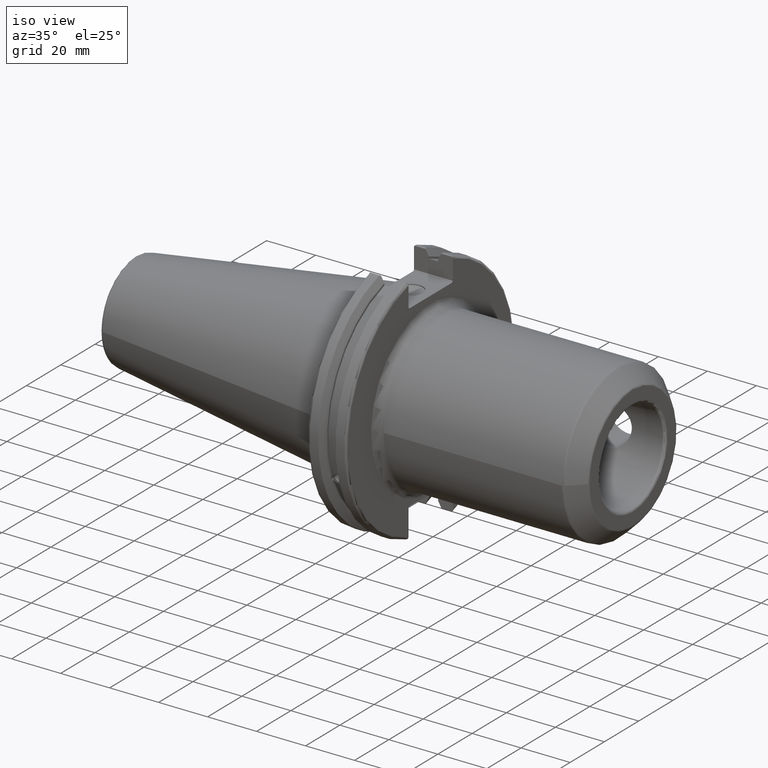
[diagram: clean part render]
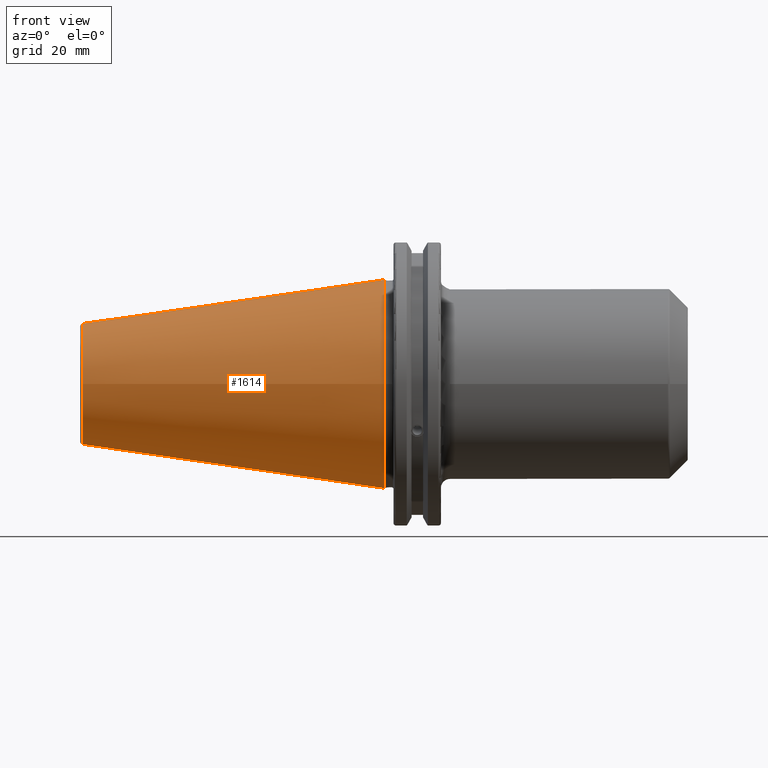
[diagram: tour spotlight — one face highlighted and labeled with its STEP entity id]
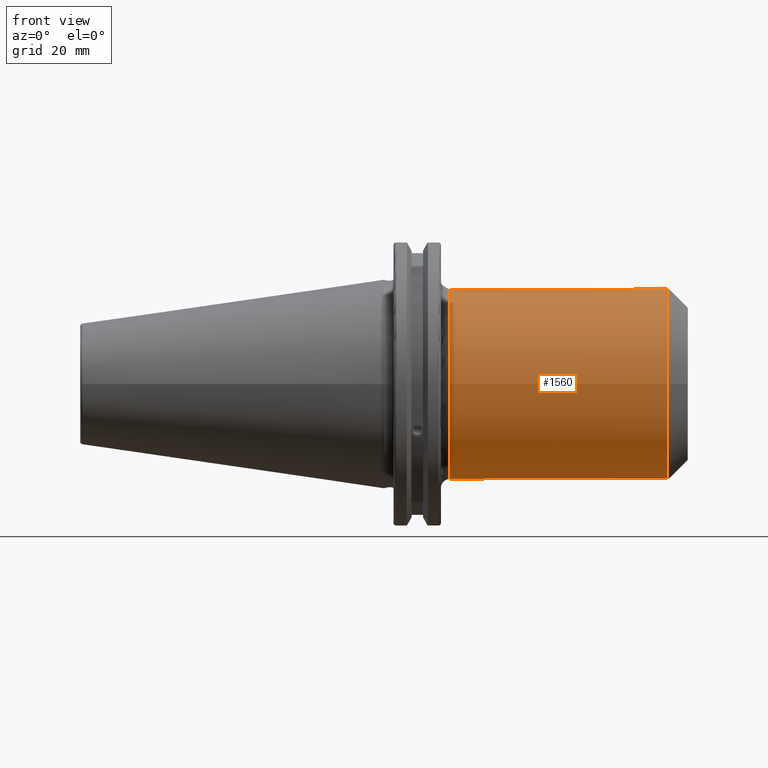
[diagram: tour spotlight — one face highlighted and labeled with its STEP entity id]
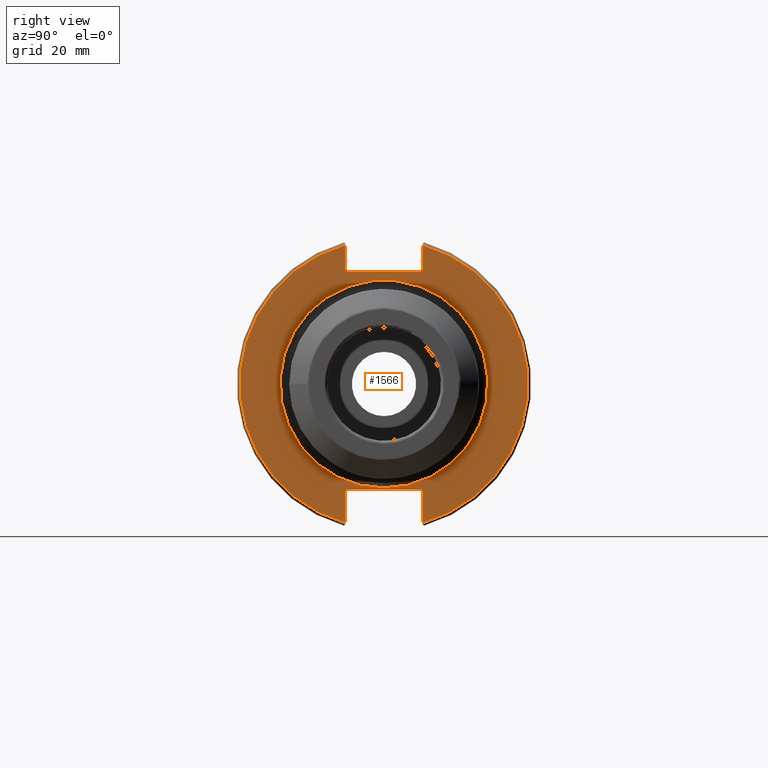
[diagram: tour spotlight — one face highlighted and labeled with its STEP entity id]
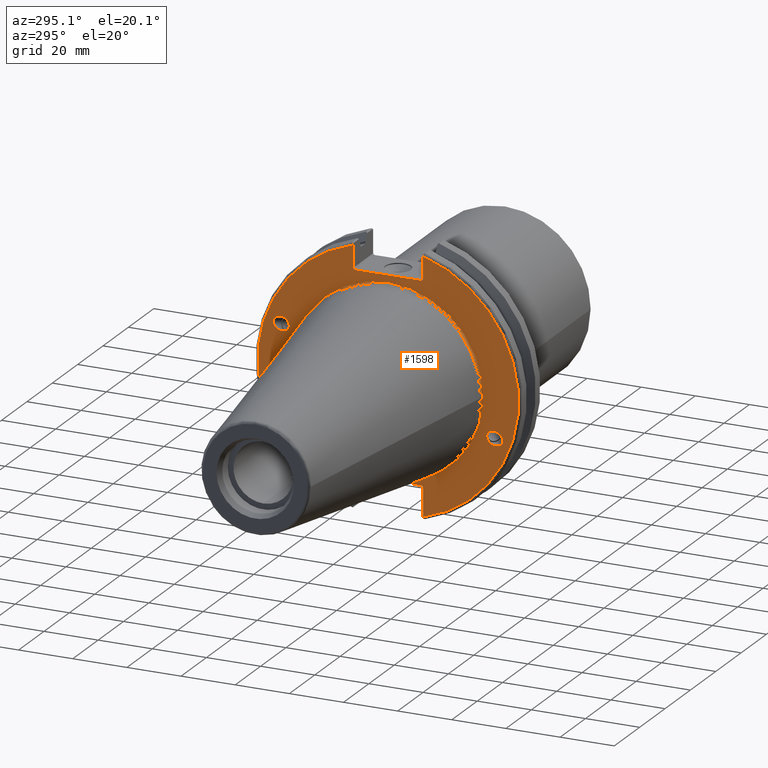
[diagram: tour spotlight — one face highlighted and labeled with its STEP entity id]
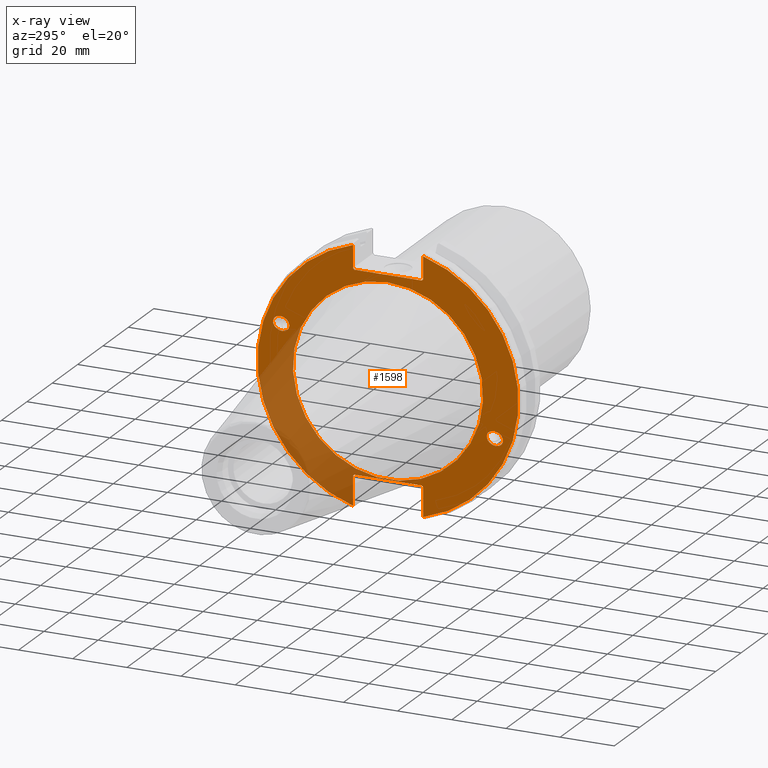
[diagram: x-ray of the same camera — body ghosted, this tour face saturated]
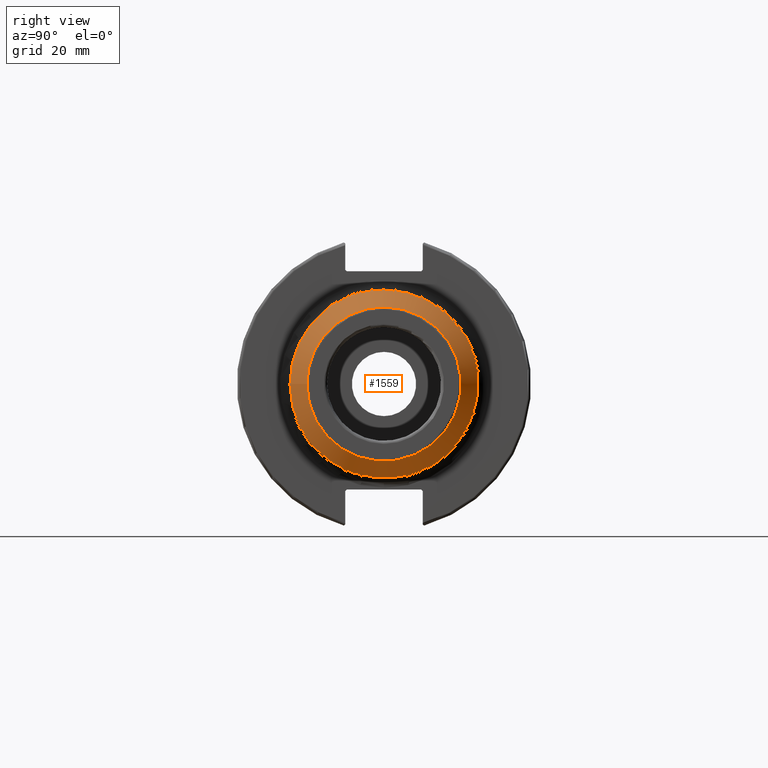
[diagram: tour spotlight — one face highlighted and labeled with its STEP entity id]
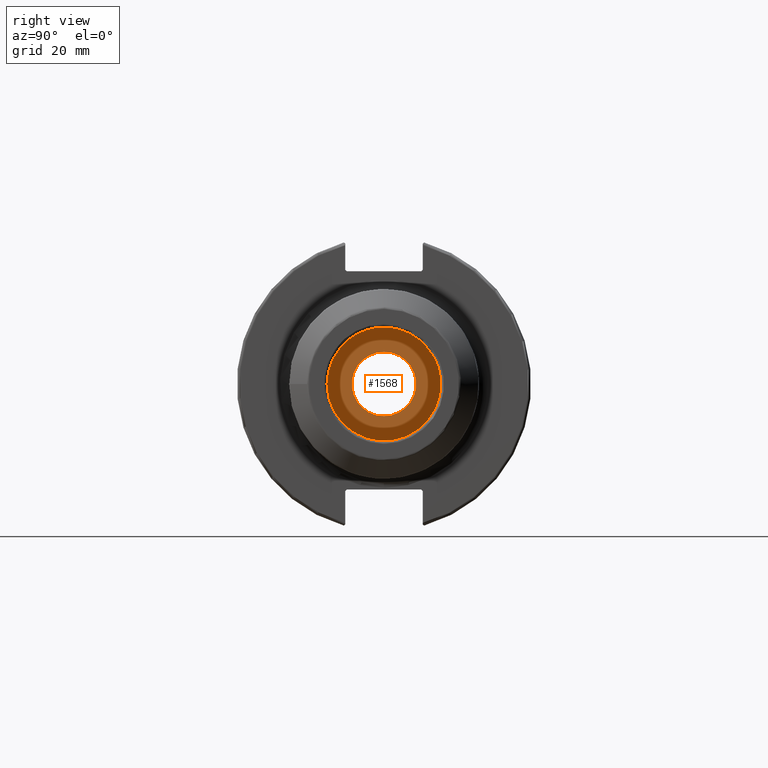
[diagram: tour spotlight — one face highlighted and labeled with its STEP entity id]
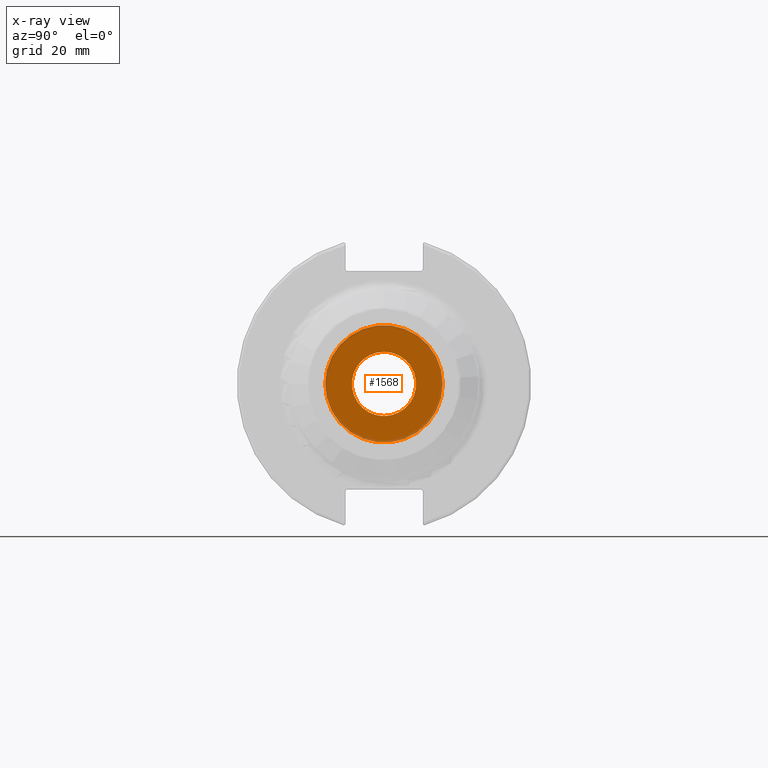
[diagram: x-ray of the same camera — body ghosted, this tour face saturated]
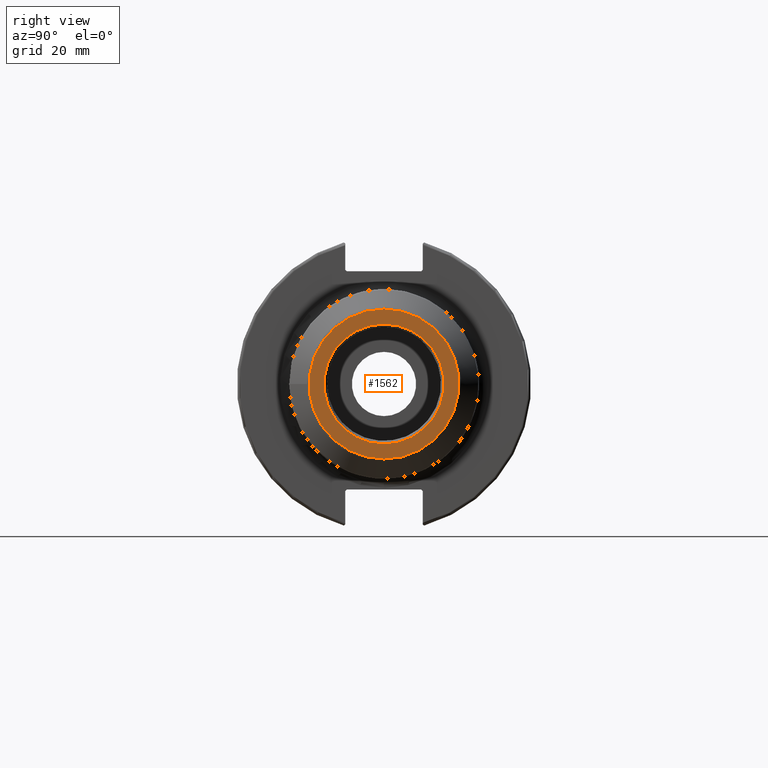
[diagram: tour spotlight — one face highlighted and labeled with its STEP entity id]
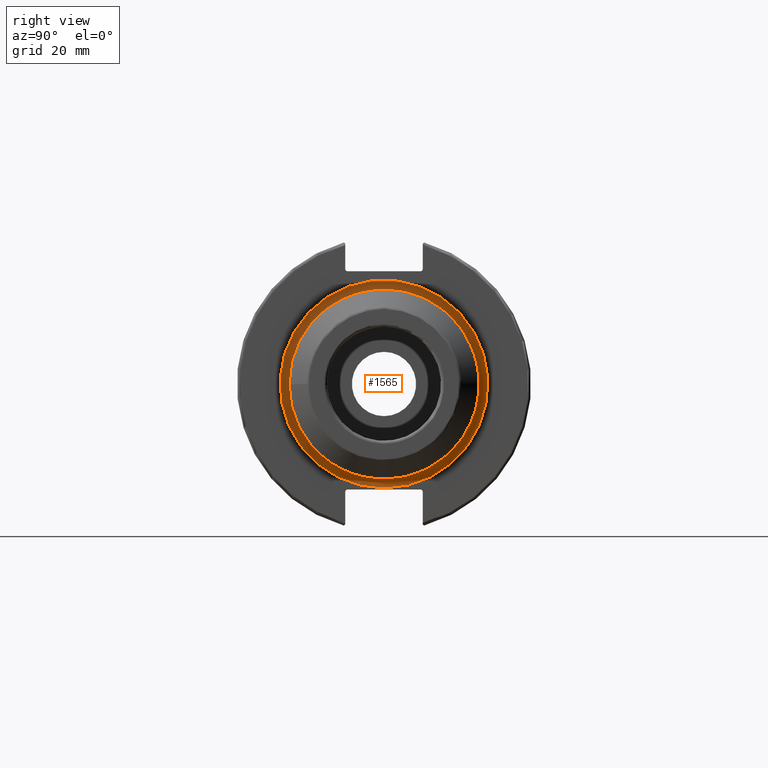
[diagram: tour spotlight — one face highlighted and labeled with its STEP entity id]
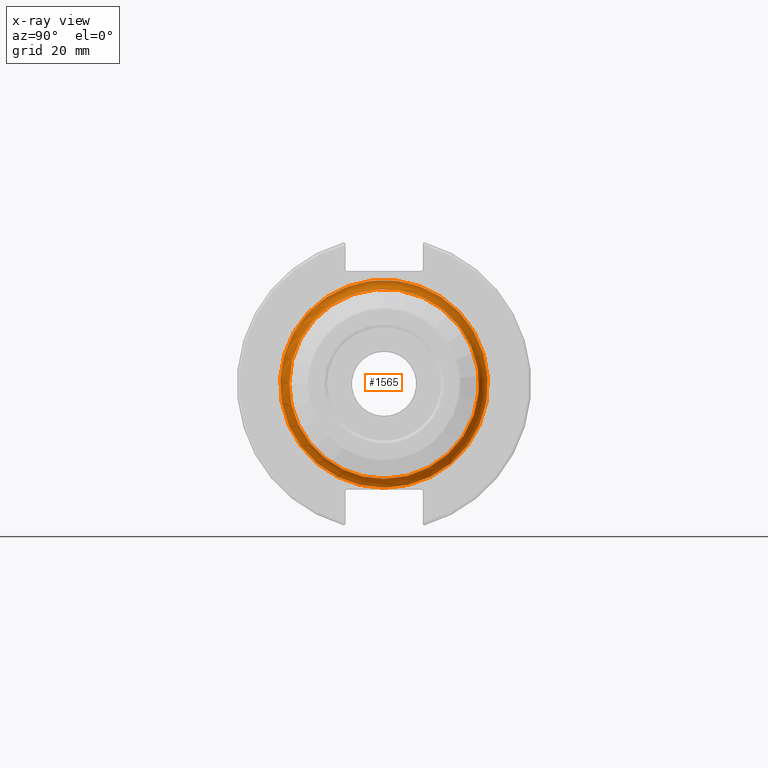
[diagram: x-ray of the same camera — body ghosted, this tour face saturated]
A machine part: a face-by-face anatomy tour. The part has 91 B-rep faces; the first image is the clean iso view, then the 8 largest visible faces are spotlighted one at a time (largest first), each with its STEP entity span.

Face 1 — front view, entity #1614. In plain terms, the highlighted conical surface has half-angle 8.297 deg.
Definition (entity closure, byte-faithful):
#51=CONICAL_SURFACE('',#1799,27.5166666666666,0.14481249823894);
#184=FACE_OUTER_BOUND('',#299,.T.);
#299=EDGE_LOOP('',(#1393,#1394,#1395,#1396,#1397));
#453=LINE('',#3316,#547);
#547=VECTOR('',#2189,27.5166666666666);
#628=CIRCLE('',#1793,20.233121911427);
#629=CIRCLE('',#1794,20.233121911427);
#633=CIRCLE('',#1800,34.925);
#795=VERTEX_POINT('',#3303);
#796=VERTEX_POINT('',#3304);
#799=VERTEX_POINT('',#3314);
#1010=EDGE_CURVE('',#795,#796,#628,.T.);
#1011=EDGE_CURVE('',#796,#795,#629,.T.);
#1015=EDGE_CURVE('',#799,#799,#633,.T.);
#1016=EDGE_CURVE('',#799,#796,#453,.T.);
#1393=ORIENTED_EDGE('',*,*,#1015,.F.);
#1394=ORIENTED_EDGE('',*,*,#1016,.T.);
#1395=ORIENTED_EDGE('',*,*,#1010,.F.);
#1396=ORIENTED_EDGE('',*,*,#1011,.F.);
#1397=ORIENTED_EDGE('',*,*,#1016,.F.);
#1614=ADVANCED_FACE('',(#184),#51,.T.);
#1793=AXIS2_PLACEMENT_3D('',#3305,#2173,#2174);
#1794=AXIS2_PLACEMENT_3D('',#3306,#2175,#2176);
#1799=AXIS2_PLACEMENT_3D('',#3313,#2185,#2186);
#1800=AXIS2_PLACEMENT_3D('',#3315,#2187,#2188);
#2173=DIRECTION('center_axis',(-1.,0.,0.));
#2174=DIRECTION('ref_axis',(0.,-1.,3.06161699786838E-17));
#2175=DIRECTION('center_axis',(-1.,0.,0.));
#2176=DIRECTION('ref_axis',(0.,-1.,3.06161699786838E-17));
#2185=DIRECTION('center_axis',(1.,0.,0.));
#2186=DIRECTION('ref_axis',(0.,1.,0.));
#2187=DIRECTION('center_axis',(1.,0.,0.));
#2188=DIRECTION('ref_axis',(0.,0.,-1.));
#2189=DIRECTION('',(-0.989532981063281,0.144306893071729,1.76724974695192E-17));
#3303=CARTESIAN_POINT('',(-100.744306893072,-2.47784279855872E-15,20.233121911427));
#3304=CARTESIAN_POINT('',(-100.744306893072,-20.233121911427,-2.47784279855872E-15));
#3305=CARTESIAN_POINT('Origin',(-100.744306893072,0.,-3.09730349819841E-15));
#3306=CARTESIAN_POINT('Origin',(-100.744306893072,0.,-3.09730349819841E-15));
#3313=CARTESIAN_POINT('Origin',(-50.8,0.,0.));
#3314=CARTESIAN_POINT('',(-8.88178419700125E-15,-34.925,-4.27707894602213E-15));
#3315=CARTESIAN_POINT('Origin',(0.,0.,0.));
#3316=CARTESIAN_POINT('',(-50.8,-27.5166666666666,-3.3698197756538E-15));

Face 2 — front view, entity #1560. In plain terms, the highlighted cylindrical surface (bore or boss wall) has radius 31.75 mm, axis along (1, 0, 0).
Definition (entity closure, byte-faithful):
#59=FACE_BOUND('',#224,.T.);
#60=FACE_BOUND('',#225,.T.);
#130=FACE_OUTER_BOUND('',#223,.T.);
#223=EDGE_LOOP('',(#1082,#1083,#1084,#1085,#1086,#1087));
#224=EDGE_LOOP('',(#1088,#1089));
#225=EDGE_LOOP('',(#1090,#1091));
#332=B_SPLINE_CURVE_WITH_KNOTS('',3,(#2334,#2335,#2336,#2337,#2338,#2339,
#2340,#2341,#2342,#2343),.UNSPECIFIED.,.F.,.F.,(4,2,2,2,4),(0.,0.374443492453987,
0.748886984907974,1.13657310866181,1.52425923241565),.UNSPECIFIED.);
#333=B_SPLINE_CURVE_WITH_KNOTS('',3,(#2344,#2345,#2346,#2347,#2348,#2349,
#2350,#2351,#2352,#2353,#2354,#2355,#2356,#2357,#2358,#2359,#2360,#2361,
#2362,#2363,#2364,#2365,#2366,#2367,#2368,#2369),.UNSPECIFIED.,.F.,.F.,
(4,2,2,2,2,2,2,2,2,2,2,2,4),(1.52425923241565,1.91194535616949,2.29963147992333,
2.67407497237732,3.0485184648313,3.42296195728529,3.79740544973928,4.18509157349312,
4.57277769724696,4.9604638210008,5.34814994475463,5.72259343720862,6.09703692966261),
 .UNSPECIFIED.);
#336=B_SPLINE_CURVE_WITH_KNOTS('',3,(#2419,#2420,#2421,#2422,#2423,#2424,
#2425,#2426,#2427,#2428),.UNSPECIFIED.,.F.,.F.,(4,2,2,2,4),(0.,0.374443492453986,
0.748886984907973,1.13657310866181,1.52425923241565),.UNSPECIFIED.);
#337=B_SPLINE_CURVE_WITH_KNOTS('',3,(#2429,#2430,#2431,#2432,#2433,#2434,
#2435,#2436,#2437,#2438,#2439,#2440,#2441,#2442,#2443,#2444,#2445,#2446,
#2447,#2448,#2449,#2450,#2451,#2452,#2453,#2454),.UNSPECIFIED.,.F.,.F.,
(4,2,2,2,2,2,2,2,2,2,2,2,4),(1.52425923241565,1.91194535616949,2.29963147992333,
2.67407497237732,3.0485184648313,3.42296195728529,3.79740544973928,4.18509157349312,
4.57277769724695,4.96046382100079,5.34814994475463,5.72259343720862,6.09703692966261),
 .UNSPECIFIED.);
#381=LINE('',#2473,#475);
#475=VECTOR('',#1887,31.75);
#571=CIRCLE('',#1680,31.75);
#572=CIRCLE('',#1681,31.75);
#575=CIRCLE('',#1686,31.75);
#576=CIRCLE('',#1687,31.75);
#649=VERTEX_POINT('',#2331);
#650=VERTEX_POINT('',#2333);
#655=VERTEX_POINT('',#2416);
#656=VERTEX_POINT('',#2418);
#659=VERTEX_POINT('',#2460);
#660=VERTEX_POINT('',#2462);
#663=VERTEX_POINT('',#2472);
#664=VERTEX_POINT('',#2474);
#813=EDGE_CURVE('',#650,#649,#332,.T.);
#814=EDGE_CURVE('',#649,#650,#333,.T.);
#821=EDGE_CURVE('',#656,#655,#336,.T.);
#822=EDGE_CURVE('',#655,#656,#337,.T.);
#826=EDGE_CURVE('',#659,#660,#571,.T.);
#827=EDGE_CURVE('',#660,#659,#572,.T.);
#831=EDGE_CURVE('',#660,#663,#381,.T.);
#832=EDGE_CURVE('',#664,#663,#575,.T.);
#833=EDGE_CURVE('',#663,#664,#576,.T.);
#1082=ORIENTED_EDGE('',*,*,#827,.F.);
#1083=ORIENTED_EDGE('',*,*,#831,.T.);
#1084=ORIENTED_EDGE('',*,*,#832,.F.);
#1085=ORIENTED_EDGE('',*,*,#833,.F.);
#1086=ORIENTED_EDGE('',*,*,#831,.F.);
#1087=ORIENTED_EDGE('',*,*,#826,.F.);
#1088=ORIENTED_EDGE('',*,*,#813,.T.);
#1089=ORIENTED_EDGE('',*,*,#814,.T.);
#1090=ORIENTED_EDGE('',*,*,#821,.T.);
#1091=ORIENTED_EDGE('',*,*,#822,.T.);
#1526=CYLINDRICAL_SURFACE('',#1685,31.75);
#1560=ADVANCED_FACE('',(#130,#59,#60),#1526,.T.);
#1680=AXIS2_PLACEMENT_3D('',#2463,#1874,#1875);
#1681=AXIS2_PLACEMENT_3D('',#2464,#1876,#1877);
#1685=AXIS2_PLACEMENT_3D('',#2471,#1885,#1886);
#1686=AXIS2_PLACEMENT_3D('',#2475,#1888,#1889);
#1687=AXIS2_PLACEMENT_3D('',#2476,#1890,#1891);
#1874=DIRECTION('center_axis',(1.,0.,0.));
#1875=DIRECTION('ref_axis',(0.,-1.,1.83697019872103E-16));
#1876=DIRECTION('center_axis',(1.,0.,0.));
#1877=DIRECTION('ref_axis',(0.,-1.,1.83697019872103E-16));
#1885=DIRECTION('center_axis',(1.,0.,0.));
#1886=DIRECTION('ref_axis',(0.,1.,0.));
#1887=DIRECTION('',(-1.,0.,0.));
#1888=DIRECTION('center_axis',(-1.,0.,0.));
#1889=DIRECTION('ref_axis',(0.,-1.,-1.22464679914735E-16));
#1890=DIRECTION('center_axis',(-1.,0.,0.));
#1891=DIRECTION('ref_axis',(0.,-1.,-1.22464679914735E-16));
#2331=CARTESIAN_POINT('',(62.95,31.75,-1.3164953090834E-15));
#2333=CARTESIAN_POINT('',(52.2,30.343922243347,-9.34392224334695));
#2334=CARTESIAN_POINT('Ctrl Pts',(52.2,30.343922243347,-9.34392224334695));
#2335=CARTESIAN_POINT('Ctrl Pts',(53.4481449748466,30.343922243347,-9.34392224334695));
#2336=CARTESIAN_POINT('Ctrl Pts',(54.7912118557551,30.4087350837418,-9.14147258450894));
#2337=CARTESIAN_POINT('Ctrl Pts',(57.3137796920474,30.6513254176603,-8.29180053230485));
#2338=CARTESIAN_POINT('Ctrl Pts',(58.4936089740547,30.8260579112038,-7.64468628242531));
#2339=CARTESIAN_POINT('Ctrl Pts',(60.4599150956574,31.1742711651337,-6.07427780465312));
#2340=CARTESIAN_POINT('Ctrl Pts',(61.3732230344645,31.3730025068592,-5.02458478722688));
#2341=CARTESIAN_POINT('Ctrl Pts',(62.6193628723698,31.663406845729,-2.63446841359294));
#2342=CARTESIAN_POINT('Ctrl Pts',(62.95,31.75,-1.29228707917947));
#2343=CARTESIAN_POINT('Ctrl Pts',(62.95,31.75,-3.05311331771918E-15));
#2344=CARTESIAN_POINT('Ctrl Pts',(62.95,31.75,0.));
#2345=CARTESIAN_POINT('Ctrl Pts',(62.95,31.75,1.29228707917946));
#2346=CARTESIAN_POINT('Ctrl Pts',(62.6193628723698,31.663406845729,2.63446841359293));
#2347=CARTESIAN_POINT('Ctrl Pts',(61.3732230344645,31.3730025068592,5.02458478722687));
#2348=CARTESIAN_POINT('Ctrl Pts',(60.4599150956574,31.1742711651337,6.07427780465312));
#2349=CARTESIAN_POINT('Ctrl Pts',(58.4936089740547,30.8260579112038,7.64468628242531));
#2350=CARTESIAN_POINT('Ctrl Pts',(57.3137796920473,30.6513254176603,8.29180053230486));
#2351=CARTESIAN_POINT('Ctrl Pts',(54.7912118557551,30.4087350837418,9.14147258450894));
#2352=CARTESIAN_POINT('Ctrl Pts',(53.4481449748466,30.343922243347,9.34392224334695));
#2353=CARTESIAN_POINT('Ctrl Pts',(50.9518550251534,30.343922243347,9.34392224334695));
#2354=CARTESIAN_POINT('Ctrl Pts',(49.6087881442449,30.4087350837418,9.14147258450894));
#2355=CARTESIAN_POINT('Ctrl Pts',(47.0862203079526,30.6513254176603,8.29180053230485));
#2356=CARTESIAN_POINT('Ctrl Pts',(45.9063910259452,30.8260579112038,7.64468628242531));
#2357=CARTESIAN_POINT('Ctrl Pts',(43.9400849043426,31.1742711651337,6.07427780465313));
#2358=CARTESIAN_POINT('Ctrl Pts',(43.0267769655354,31.3730025068592,5.02458478722688));
#2359=CARTESIAN_POINT('Ctrl Pts',(41.7806371276302,31.663406845729,2.63446841359294));
#2360=CARTESIAN_POINT('Ctrl Pts',(41.45,31.75,1.29228707917947));
#2361=CARTESIAN_POINT('Ctrl Pts',(41.45,31.75,-1.29228707917946));
#2362=CARTESIAN_POINT('Ctrl Pts',(41.7806371276302,31.663406845729,-2.63446841359294));
#2363=CARTESIAN_POINT('Ctrl Pts',(43.0267769655354,31.3730025068592,-5.02458478722688));
#2364=CARTESIAN_POINT('Ctrl Pts',(43.9400849043426,31.1742711651337,-6.07427780465312));
#2365=CARTESIAN_POINT('Ctrl Pts',(45.9063910259452,30.8260579112038,-7.64468628242531));
#2366=CARTESIAN_POINT('Ctrl Pts',(47.0862203079526,30.6513254176603,-8.29180053230485));
#2367=CARTESIAN_POINT('Ctrl Pts',(49.6087881442449,30.4087350837418,-9.14147258450894));
#2368=CARTESIAN_POINT('Ctrl Pts',(50.9518550251534,30.343922243347,-9.34392224334695));
#2369=CARTESIAN_POINT('Ctrl Pts',(52.2,30.343922243347,-9.34392224334695));
#2416=CARTESIAN_POINT('',(89.95,31.75,-1.3164953090834E-15));
#2418=CARTESIAN_POINT('',(79.2,30.343922243347,-9.34392224334695));
#2419=CARTESIAN_POINT('Ctrl Pts',(79.2,30.343922243347,-9.34392224334695));
#2420=CARTESIAN_POINT('Ctrl Pts',(80.4481449748466,30.343922243347,-9.34392224334695));
#2421=CARTESIAN_POINT('Ctrl Pts',(81.7912118557551,30.4087350837418,-9.14147258450893));
#2422=CARTESIAN_POINT('Ctrl Pts',(84.3137796920473,30.6513254176603,-8.29180053230485));
#2423=CARTESIAN_POINT('Ctrl Pts',(85.4936089740547,30.8260579112038,-7.64468628242531));
#2424=CARTESIAN_POINT('Ctrl Pts',(87.4599150956574,31.1742711651337,-6.07427780465312));
#2425=CARTESIAN_POINT('Ctrl Pts',(88.3732230344645,31.3730025068592,-5.02458478722689));
#2426=CARTESIAN_POINT('Ctrl Pts',(89.6193628723697,31.663406845729,-2.63446841359294));
#2427=CARTESIAN_POINT('Ctrl Pts',(89.95,31.75,-1.29228707917946));
#2428=CARTESIAN_POINT('Ctrl Pts',(89.95,31.75,-1.38777878078145E-15));
#2429=CARTESIAN_POINT('Ctrl Pts',(89.95,31.75,8.32667268468867E-16));
#2430=CARTESIAN_POINT('Ctrl Pts',(89.95,31.75,1.29228707917946));
#2431=CARTESIAN_POINT('Ctrl Pts',(89.6193628723698,31.663406845729,2.63446841359294));
#2432=CARTESIAN_POINT('Ctrl Pts',(88.3732230344646,31.3730025068592,5.02458478722689));
#2433=CARTESIAN_POINT('Ctrl Pts',(87.4599150956574,31.1742711651337,6.07427780465312));
#2434=CARTESIAN_POINT('Ctrl Pts',(85.4936089740548,30.8260579112038,7.64468628242531));
#2435=CARTESIAN_POINT('Ctrl Pts',(84.3137796920473,30.6513254176603,8.29180053230487));
#2436=CARTESIAN_POINT('Ctrl Pts',(81.7912118557551,30.4087350837418,9.14147258450895));
#2437=CARTESIAN_POINT('Ctrl Pts',(80.4481449748466,30.343922243347,9.34392224334695));
#2438=CARTESIAN_POINT('Ctrl Pts',(77.9518550251534,30.343922243347,9.34392224334695));
#2439=CARTESIAN_POINT('Ctrl Pts',(76.6087881442449,30.4087350837418,9.14147258450894));
#2440=CARTESIAN_POINT('Ctrl Pts',(74.0862203079526,30.6513254176603,8.29180053230485));
#2441=CARTESIAN_POINT('Ctrl Pts',(72.9063910259453,30.8260579112038,7.64468628242531));
#2442=CARTESIAN_POINT('Ctrl Pts',(70.9400849043426,31.1742711651337,6.07427780465312));
#2443=CARTESIAN_POINT('Ctrl Pts',(70.0267769655354,31.3730025068592,5.02458478722689));
#2444=CARTESIAN_POINT('Ctrl Pts',(68.7806371276302,31.663406845729,2.63446841359294));
#2445=CARTESIAN_POINT('Ctrl Pts',(68.45,31.75,1.29228707917947));
#2446=CARTESIAN_POINT('Ctrl Pts',(68.45,31.75,-1.29228707917946));
#2447=CARTESIAN_POINT('Ctrl Pts',(68.7806371276302,31.663406845729,-2.63446841359293));
#2448=CARTESIAN_POINT('Ctrl Pts',(70.0267769655354,31.3730025068592,-5.02458478722688));
#2449=CARTESIAN_POINT('Ctrl Pts',(70.9400849043426,31.1742711651337,-6.07427780465312));
#2450=CARTESIAN_POINT('Ctrl Pts',(72.9063910259453,30.8260579112038,-7.64468628242531));
#2451=CARTESIAN_POINT('Ctrl Pts',(74.0862203079526,30.6513254176603,-8.29180053230486));
#2452=CARTESIAN_POINT('Ctrl Pts',(76.6087881442449,30.4087350837418,-9.14147258450894));
#2453=CARTESIAN_POINT('Ctrl Pts',(77.9518550251533,30.343922243347,-9.34392224334695));
#2454=CARTESIAN_POINT('Ctrl Pts',(79.2,30.343922243347,-9.34392224334695));
#2460=CARTESIAN_POINT('',(94.9357864376269,-3.88825358729285E-15,31.75));
#2462=CARTESIAN_POINT('',(94.9357864376269,-31.75,-3.88825358729285E-15));
#2463=CARTESIAN_POINT('Origin',(94.9357864376269,0.,0.));
#2464=CARTESIAN_POINT('Origin',(94.9357864376269,0.,0.));
#2471=CARTESIAN_POINT('Origin',(57.2,0.,0.));
#2472=CARTESIAN_POINT('',(22.05,-31.75,-3.88825358729285E-15));
#2473=CARTESIAN_POINT('',(57.2,-31.75,-3.88825358729285E-15));
#2474=CARTESIAN_POINT('',(22.05,-3.88825358729285E-15,-31.75));
#2475=CARTESIAN_POINT('Origin',(22.05,0.,0.));
#2476=CARTESIAN_POINT('Origin',(22.05,0.,0.));

Face 3 — right view, entity #1566. In plain terms, the highlighted planar face has unit normal (1, 0, 0).
Definition (entity closure, byte-faithful):
#64=FACE_BOUND('',#235,.T.);
#86=PLANE('',#1702);
#136=FACE_OUTER_BOUND('',#234,.T.);
#234=EDGE_LOOP('',(#1118,#1119,#1120,#1121,#1122,#1123,#1124,#1125,#1126,
#1127,#1128,#1129));
#235=EDGE_LOOP('',(#1130));
#383=LINE('',#2503,#477);
#384=LINE('',#2505,#478);
#385=LINE('',#2507,#479);
#386=LINE('',#2509,#480);
#387=LINE('',#2511,#481);
#388=LINE('',#2515,#482);
#389=LINE('',#2517,#483);
#390=LINE('',#2519,#484);
#391=LINE('',#2521,#485);
#392=LINE('',#2522,#486);
#477=VECTOR('',#1925,10.);
#478=VECTOR('',#1926,10.);
#479=VECTOR('',#1927,10.);
#480=VECTOR('',#1928,10.);
#481=VECTOR('',#1929,10.);
#482=VECTOR('',#1932,10.);
#483=VECTOR('',#1933,10.);
#484=VECTOR('',#1934,10.);
#485=VECTOR('',#1935,10.);
#486=VECTOR('',#1936,10.);
#585=CIRCLE('',#1701,34.75);
#586=CIRCLE('',#1703,48.2125);
#587=CIRCLE('',#1704,48.2125);
#670=VERTEX_POINT('',#2495);
#671=VERTEX_POINT('',#2499);
#672=VERTEX_POINT('',#2500);
#673=VERTEX_POINT('',#2502);
#674=VERTEX_POINT('',#2504);
#675=VERTEX_POINT('',#2506);
#676=VERTEX_POINT('',#2508);
#677=VERTEX_POINT('',#2510);
#678=VERTEX_POINT('',#2512);
#679=VERTEX_POINT('',#2514);
#680=VERTEX_POINT('',#2516);
#681=VERTEX_POINT('',#2518);
#682=VERTEX_POINT('',#2520);
#843=EDGE_CURVE('',#670,#670,#585,.T.);
#844=EDGE_CURVE('',#671,#672,#586,.T.);
#845=EDGE_CURVE('',#671,#673,#383,.T.);
#846=EDGE_CURVE('',#674,#673,#384,.T.);
#847=EDGE_CURVE('',#674,#675,#385,.T.);
#848=EDGE_CURVE('',#676,#675,#386,.T.);
#849=EDGE_CURVE('',#676,#677,#387,.T.);
#850=EDGE_CURVE('',#678,#677,#587,.T.);
#851=EDGE_CURVE('',#678,#679,#388,.T.);
#852=EDGE_CURVE('',#680,#679,#389,.T.);
#853=EDGE_CURVE('',#680,#681,#390,.T.);
#854=EDGE_CURVE('',#682,#681,#391,.T.);
#855=EDGE_CURVE('',#682,#672,#392,.T.);
#1118=ORIENTED_EDGE('',*,*,#844,.F.);
#1119=ORIENTED_EDGE('',*,*,#845,.T.);
#1120=ORIENTED_EDGE('',*,*,#846,.F.);
#1121=ORIENTED_EDGE('',*,*,#847,.T.);
#1122=ORIENTED_EDGE('',*,*,#848,.F.);
#1123=ORIENTED_EDGE('',*,*,#849,.T.);
#1124=ORIENTED_EDGE('',*,*,#850,.F.);
#1125=ORIENTED_EDGE('',*,*,#851,.T.);
#1126=ORIENTED_EDGE('',*,*,#852,.F.);
#1127=ORIENTED_EDGE('',*,*,#853,.T.);
#1128=ORIENTED_EDGE('',*,*,#854,.F.);
#1129=ORIENTED_EDGE('',*,*,#855,.T.);
#1130=ORIENTED_EDGE('',*,*,#843,.F.);
#1566=ADVANCED_FACE('',(#136,#64),#86,.T.);
#1701=AXIS2_PLACEMENT_3D('',#2497,#1919,#1920);
#1702=AXIS2_PLACEMENT_3D('',#2498,#1921,#1922);
#1703=AXIS2_PLACEMENT_3D('',#2501,#1923,#1924);
#1704=AXIS2_PLACEMENT_3D('',#2513,#1930,#1931);
#1919=DIRECTION('center_axis',(1.,0.,0.));
#1920=DIRECTION('ref_axis',(0.,-1.,-1.22464679914735E-16));
#1921=DIRECTION('center_axis',(1.,0.,0.));
#1922=DIRECTION('ref_axis',(0.,0.,-1.));
#1923=DIRECTION('center_axis',(-1.,0.,0.));
#1924=DIRECTION('ref_axis',(0.,1.,-6.12323399573677E-17));
#1925=DIRECTION('',(0.,0.,-1.));
#1926=DIRECTION('',(0.,0.707106781186549,0.707106781186546));
#1927=DIRECTION('',(0.,-1.,0.));
#1928=DIRECTION('',(0.,0.707106781186549,-0.707106781186546));
#1929=DIRECTION('',(0.,0.,1.));
#1930=DIRECTION('center_axis',(-1.,0.,0.));
#1931=DIRECTION('ref_axis',(0.,-1.,1.60812264967664E-16));
#1932=DIRECTION('',(0.,0.,1.));
#1933=DIRECTION('',(0.,-0.707106781186549,-0.707106781186546));
#1934=DIRECTION('',(0.,1.,0.));
#1935=DIRECTION('',(0.,-0.707106781186549,0.707106781186546));
#1936=DIRECTION('',(0.,0.,-1.));
#2495=CARTESIAN_POINT('',(19.05,-4.25564762703705E-15,-34.75));
#2497=CARTESIAN_POINT('Origin',(19.05,0.,0.));
#2498=CARTESIAN_POINT('Origin',(19.05,0.,0.));
#2499=CARTESIAN_POINT('',(19.05,12.95,46.4407434937254));
#2500=CARTESIAN_POINT('',(19.05,12.95,-46.4407434937254));
#2501=CARTESIAN_POINT('Origin',(19.05,0.,0.));
#2502=CARTESIAN_POINT('',(19.05,12.95,38.219));
#2503=CARTESIAN_POINT('',(19.05,12.95,18.8595));
#2504=CARTESIAN_POINT('',(19.05,12.45,37.719));
#2505=CARTESIAN_POINT('',(19.05,0.0327499999999836,25.30175));
#2506=CARTESIAN_POINT('',(19.05,-12.45,37.719));
#2507=CARTESIAN_POINT('',(19.05,0.,37.719));
#2508=CARTESIAN_POINT('',(19.05,-12.95,38.219));
#2509=CARTESIAN_POINT('',(19.05,-0.0327499999999817,25.30175));
#2510=CARTESIAN_POINT('',(19.05,-12.95,46.4407434937254));
#2511=CARTESIAN_POINT('',(19.05,-12.95,18.8595));
#2512=CARTESIAN_POINT('',(19.05,-12.95,-46.4407434937254));
#2513=CARTESIAN_POINT('Origin',(19.05,0.,0.));
#2514=CARTESIAN_POINT('',(19.05,-12.95,-35.806));
#2515=CARTESIAN_POINT('',(19.05,-12.95,-17.653));
#2516=CARTESIAN_POINT('',(19.05,-12.45,-35.306));
#2517=CARTESIAN_POINT('',(19.05,-0.635999999999989,-23.492));
#2518=CARTESIAN_POINT('',(19.05,12.45,-35.306));
#2519=CARTESIAN_POINT('',(19.05,-3.33066907387547E-15,-35.306));
#2520=CARTESIAN_POINT('',(19.05,12.95,-35.806));
#2521=CARTESIAN_POINT('',(19.05,0.635999999999982,-23.492));
#2522=CARTESIAN_POINT('',(19.05,12.95,-17.653));

Face 4 — auxiliary view, entity #1598. An x-ray twin of the same camera follows (body ghosted, this face saturated) — the face is partly hidden behind the body. In plain terms, the highlighted planar face has unit normal (-1, 0, 0).
Definition (entity closure, byte-faithful):
#31=ELLIPSE('',#1726,3.05193647190364,2.5);
#32=ELLIPSE('',#1760,3.05193647190364,2.5);
#77=FACE_BOUND('',#280,.T.);
#78=FACE_BOUND('',#281,.T.);
#79=FACE_BOUND('',#282,.T.);
#97=PLANE('',#1770);
#168=FACE_OUTER_BOUND('',#279,.T.);
#279=EDGE_LOOP('',(#1286,#1287,#1288,#1289,#1290,#1291,#1292,#1293,#1294,
#1295,#1296,#1297));
#280=EDGE_LOOP('',(#1298));
#281=EDGE_LOOP('',(#1299));
#282=EDGE_LOOP('',(#1300));
#423=LINE('',#3084,#517);
#424=LINE('',#3086,#518);
#425=LINE('',#3088,#519);
#426=LINE('',#3090,#520);
#427=LINE('',#3092,#521);
#428=LINE('',#3096,#522);
#429=LINE('',#3098,#523);
#430=LINE('',#3100,#524);
#431=LINE('',#3102,#525);
#432=LINE('',#3103,#526);
#517=VECTOR('',#2101,10.);
#518=VECTOR('',#2102,10.);
#519=VECTOR('',#2103,10.);
#520=VECTOR('',#2104,10.);
#521=VECTOR('',#2105,10.);
#522=VECTOR('',#2108,10.);
#523=VECTOR('',#2109,10.);
#524=VECTOR('',#2110,10.);
#525=VECTOR('',#2111,10.);
#526=VECTOR('',#2112,10.);
#618=CIRCLE('',#1768,35.125);
#620=CIRCLE('',#1771,48.2125);
#621=CIRCLE('',#1772,48.2125);
#710=VERTEX_POINT('',#2801);
#748=VERTEX_POINT('',#3060);
#753=VERTEX_POINT('',#3075);
#754=VERTEX_POINT('',#3080);
#755=VERTEX_POINT('',#3081);
#756=VERTEX_POINT('',#3083);
#757=VERTEX_POINT('',#3085);
#758=VERTEX_POINT('',#3087);
#759=VERTEX_POINT('',#3089);
#760=VERTEX_POINT('',#3091);
#761=VERTEX_POINT('',#3093);
#762=VERTEX_POINT('',#3095);
#763=VERTEX_POINT('',#3097);
#764=VERTEX_POINT('',#3099);
#765=VERTEX_POINT('',#3101);
#890=EDGE_CURVE('',#710,#710,#31,.T.);
#941=EDGE_CURVE('',#748,#748,#32,.T.);
#948=EDGE_CURVE('',#753,#753,#618,.T.);
#950=EDGE_CURVE('',#754,#755,#620,.T.);
#951=EDGE_CURVE('',#754,#756,#423,.T.);
#952=EDGE_CURVE('',#757,#756,#424,.T.);
#953=EDGE_CURVE('',#757,#758,#425,.T.);
#954=EDGE_CURVE('',#759,#758,#426,.T.);
#955=EDGE_CURVE('',#759,#760,#427,.T.);
#956=EDGE_CURVE('',#761,#760,#621,.T.);
#957=EDGE_CURVE('',#761,#762,#428,.T.);
#958=EDGE_CURVE('',#763,#762,#429,.T.);
#959=EDGE_CURVE('',#763,#764,#430,.T.);
#960=EDGE_CURVE('',#765,#764,#431,.T.);
#961=EDGE_CURVE('',#765,#755,#432,.T.);
#1286=ORIENTED_EDGE('',*,*,#950,.F.);
#1287=ORIENTED_EDGE('',*,*,#951,.T.);
#1288=ORIENTED_EDGE('',*,*,#952,.F.);
#1289=ORIENTED_EDGE('',*,*,#953,.T.);
#1290=ORIENTED_EDGE('',*,*,#954,.F.);
#1291=ORIENTED_EDGE('',*,*,#955,.T.);
#1292=ORIENTED_EDGE('',*,*,#956,.F.);
#1293=ORIENTED_EDGE('',*,*,#957,.T.);
#1294=ORIENTED_EDGE('',*,*,#958,.F.);
#1295=ORIENTED_EDGE('',*,*,#959,.T.);
#1296=ORIENTED_EDGE('',*,*,#960,.F.);
#1297=ORIENTED_EDGE('',*,*,#961,.T.);
#1298=ORIENTED_EDGE('',*,*,#890,.T.);
#1299=ORIENTED_EDGE('',*,*,#941,.T.);
#1300=ORIENTED_EDGE('',*,*,#948,.F.);
#1598=ADVANCED_FACE('',(#168,#77,#78,#79),#97,.T.);
#1726=AXIS2_PLACEMENT_3D('',#2803,#1991,#1992);
#1760=AXIS2_PLACEMENT_3D('',#3062,#2075,#2076);
#1768=AXIS2_PLACEMENT_3D('',#3077,#2093,#2094);
#1770=AXIS2_PLACEMENT_3D('',#3079,#2097,#2098);
#1771=AXIS2_PLACEMENT_3D('',#3082,#2099,#2100);
#1772=AXIS2_PLACEMENT_3D('',#3094,#2106,#2107);
#1991=DIRECTION('center_axis',(1.,0.,0.));
#1992=DIRECTION('ref_axis',(0.,-0.939692620785908,-0.342020143325668));
#2075=DIRECTION('center_axis',(1.,0.,0.));
#2076=DIRECTION('ref_axis',(0.,0.939692620785908,0.342020143325669));
#2093=DIRECTION('center_axis',(-1.,0.,0.));
#2094=DIRECTION('ref_axis',(0.,-1.,1.83697019872103E-16));
#2097=DIRECTION('center_axis',(-1.,0.,0.));
#2098=DIRECTION('ref_axis',(0.,0.,1.));
#2099=DIRECTION('center_axis',(1.,0.,0.));
#2100=DIRECTION('ref_axis',(0.,-1.,1.60812264967664E-16));
#2101=DIRECTION('',(0.,0.,-1.));
#2102=DIRECTION('',(0.,-0.707106781186549,0.707106781186546));
#2103=DIRECTION('',(0.,1.,0.));
#2104=DIRECTION('',(0.,-0.707106781186549,-0.707106781186546));
#2105=DIRECTION('',(0.,0.,1.));
#2106=DIRECTION('center_axis',(1.,0.,0.));
#2107=DIRECTION('ref_axis',(0.,1.,-6.12323399573677E-17));
#2108=DIRECTION('',(0.,0.,1.));
#2109=DIRECTION('',(0.,0.707106781186549,-0.707106781186546));
#2110=DIRECTION('',(0.,-1.,0.));
#2111=DIRECTION('',(0.,0.707106781186549,0.707106781186546));
#2112=DIRECTION('',(0.,0.,-1.));
#2801=CARTESIAN_POINT('',(3.175,-36.5992078912529,-13.3210222701368));
#2803=CARTESIAN_POINT('Origin',(3.175,-39.4670900730082,-14.3648460196781));
#3060=CARTESIAN_POINT('',(3.175,36.5992078912529,13.3210222701368));
#3062=CARTESIAN_POINT('Origin',(3.175,39.4670900730082,14.3648460196781));
#3075=CARTESIAN_POINT('',(3.175,-4.30157188200508E-15,35.125));
#3077=CARTESIAN_POINT('Origin',(3.175,0.,0.));
#3079=CARTESIAN_POINT('Origin',(3.175,49.2125,0.));
#3080=CARTESIAN_POINT('',(3.175,-12.95,46.4407434937254));
#3081=CARTESIAN_POINT('',(3.175,-12.95,-46.4407434937254));
#3082=CARTESIAN_POINT('Origin',(3.175,0.,0.));
#3083=CARTESIAN_POINT('',(3.175,-12.95,38.219));
#3084=CARTESIAN_POINT('',(3.175,-12.95,18.8595));
#3085=CARTESIAN_POINT('',(3.175,-12.45,37.719));
#3086=CARTESIAN_POINT('',(3.175,12.2703750000001,12.998625));
#3087=CARTESIAN_POINT('',(3.175,12.45,37.719));
#3088=CARTESIAN_POINT('',(3.175,24.60625,37.719));
#3089=CARTESIAN_POINT('',(3.175,12.95,38.219));
#3090=CARTESIAN_POINT('',(3.175,12.335875,37.604875));
#3091=CARTESIAN_POINT('',(3.175,12.95,46.4407434937254));
#3092=CARTESIAN_POINT('',(3.175,12.95,18.8595));
#3093=CARTESIAN_POINT('',(3.175,12.95,-46.4407434937254));
#3094=CARTESIAN_POINT('Origin',(3.175,0.,0.));
#3095=CARTESIAN_POINT('',(3.175,12.95,-35.806));
#3096=CARTESIAN_POINT('',(3.175,12.95,-17.653));
#3097=CARTESIAN_POINT('',(3.175,12.45,-35.306));
#3098=CARTESIAN_POINT('',(3.175,12.939125,-35.795125));
#3099=CARTESIAN_POINT('',(3.175,-12.45,-35.306));
#3100=CARTESIAN_POINT('',(3.175,24.60625,-35.306));
#3101=CARTESIAN_POINT('',(3.175,-12.95,-35.806));
#3102=CARTESIAN_POINT('',(3.175,11.6671250000001,-11.188875));
#3103=CARTESIAN_POINT('',(3.175,-12.95,-17.653));

Face 5 — right view, entity #1559. In plain terms, the highlighted conical surface has half-angle 45 deg.
Definition (entity closure, byte-faithful):
#45=CONICAL_SURFACE('',#1682,28.625,0.785398163397448);
#129=FACE_OUTER_BOUND('',#222,.T.);
#222=EDGE_LOOP('',(#1076,#1077,#1078,#1079,#1080,#1081));
#380=LINE('',#2469,#474);
#474=VECTOR('',#1882,28.625);
#568=CIRCLE('',#1677,31.4571067811865);
#569=CIRCLE('',#1678,31.4571067811865);
#573=CIRCLE('',#1683,25.7928932188135);
#574=CIRCLE('',#1684,25.7928932188135);
#657=VERTEX_POINT('',#2456);
#658=VERTEX_POINT('',#2457);
#661=VERTEX_POINT('',#2466);
#662=VERTEX_POINT('',#2467);
#823=EDGE_CURVE('',#657,#658,#568,.T.);
#824=EDGE_CURVE('',#658,#657,#569,.T.);
#828=EDGE_CURVE('',#661,#662,#573,.T.);
#829=EDGE_CURVE('',#661,#658,#380,.T.);
#830=EDGE_CURVE('',#662,#661,#574,.T.);
#1076=ORIENTED_EDGE('',*,*,#828,.F.);
#1077=ORIENTED_EDGE('',*,*,#829,.T.);
#1078=ORIENTED_EDGE('',*,*,#823,.F.);
#1079=ORIENTED_EDGE('',*,*,#824,.F.);
#1080=ORIENTED_EDGE('',*,*,#829,.F.);
#1081=ORIENTED_EDGE('',*,*,#830,.F.);
#1559=ADVANCED_FACE('',(#129),#45,.T.);
#1677=AXIS2_PLACEMENT_3D('',#2458,#1868,#1869);
#1678=AXIS2_PLACEMENT_3D('',#2459,#1870,#1871);
#1682=AXIS2_PLACEMENT_3D('',#2465,#1878,#1879);
#1683=AXIS2_PLACEMENT_3D('',#2468,#1880,#1881);
#1684=AXIS2_PLACEMENT_3D('',#2470,#1883,#1884);
#1868=DIRECTION('center_axis',(-1.,0.,0.));
#1869=DIRECTION('ref_axis',(0.,-1.,3.06161699786838E-17));
#1870=DIRECTION('center_axis',(-1.,0.,0.));
#1871=DIRECTION('ref_axis',(0.,-1.,3.06161699786838E-17));
#1878=DIRECTION('center_axis',(-1.,0.,0.));
#1879=DIRECTION('ref_axis',(0.,1.,0.));
#1880=DIRECTION('center_axis',(1.,0.,0.));
#1881=DIRECTION('ref_axis',(0.,-1.,3.06161699786838E-17));
#1882=DIRECTION('',(-0.707106781186547,-0.707106781186548,-8.65956056235493E-17));
#1883=DIRECTION('center_axis',(1.,0.,0.));
#1884=DIRECTION('ref_axis',(0.,-1.,3.06161699786838E-17));
#2456=CARTESIAN_POINT('',(95.6428932188135,-3.85238451300166E-15,31.4571067811865));
#2457=CARTESIAN_POINT('',(95.6428932188135,-31.4571067811865,-3.85238451300166E-15));
#2458=CARTESIAN_POINT('Origin',(95.6428932188135,0.,-4.81548064125207E-15));
#2459=CARTESIAN_POINT('Origin',(95.6428932188135,0.,-4.81548064125207E-15));
#2465=CARTESIAN_POINT('Origin',(98.475,0.,0.));
#2466=CARTESIAN_POINT('',(101.307106781187,-25.7928932188134,-3.15871841211694E-15));
#2467=CARTESIAN_POINT('',(101.307106781187,-3.15871841211694E-15,25.7928932188134));
#2468=CARTESIAN_POINT('Origin',(101.307106781187,0.,-3.94839801514617E-15));
#2469=CARTESIAN_POINT('',(98.475,-28.625,-3.5055514625593E-15));
#2470=CARTESIAN_POINT('Origin',(101.307106781187,0.,-3.94839801514617E-15));

Face 6 — right view, entity #1568. An x-ray twin of the same camera follows (body ghosted, this face saturated) — the face is partly hidden behind the body. In plain terms, the highlighted planar face has unit normal (-1, 0, 0).
Definition (entity closure, byte-faithful):
#65=FACE_BOUND('',#238,.T.);
#87=PLANE('',#1708);
#138=FACE_OUTER_BOUND('',#237,.T.);
#237=EDGE_LOOP('',(#1135));
#238=EDGE_LOOP('',(#1136));
#589=CIRCLE('',#1707,10.75);
#590=CIRCLE('',#1709,19.65);
#684=VERTEX_POINT('',#2526);
#685=VERTEX_POINT('',#2530);
#858=EDGE_CURVE('',#684,#684,#589,.T.);
#859=EDGE_CURVE('',#685,#685,#590,.T.);
#1135=ORIENTED_EDGE('',*,*,#859,.F.);
#1136=ORIENTED_EDGE('',*,*,#858,.T.);
#1568=ADVANCED_FACE('',(#138,#65),#87,.F.);
#1707=AXIS2_PLACEMENT_3D('',#2528,#1942,#1943);
#1708=AXIS2_PLACEMENT_3D('',#2529,#1944,#1945);
#1709=AXIS2_PLACEMENT_3D('',#2531,#1946,#1947);
#1942=DIRECTION('center_axis',(-1.,0.,0.));
#1943=DIRECTION('ref_axis',(0.,0.,1.));
#1944=DIRECTION('center_axis',(-1.,0.,0.));
#1945=DIRECTION('ref_axis',(0.,0.,1.));
#1946=DIRECTION('center_axis',(-1.,0.,0.));
#1947=DIRECTION('ref_axis',(0.,0.,1.));
#2526=CARTESIAN_POINT('',(0.599999999999987,-1.3164953090834E-15,-10.75));
#2528=CARTESIAN_POINT('Origin',(0.599999999999987,0.,0.));
#2529=CARTESIAN_POINT('Origin',(0.599999999999987,0.,0.));
#2530=CARTESIAN_POINT('',(0.599999999999987,-19.65,-2.40643096032455E-15));
#2531=CARTESIAN_POINT('Origin',(0.599999999999987,0.,0.));

Face 7 — right view, entity #1562. In plain terms, the highlighted planar face has unit normal (1, 0, 0).
Definition (entity closure, byte-faithful):
#61=FACE_BOUND('',#228,.T.);
#85=PLANE('',#1691);
#132=FACE_OUTER_BOUND('',#227,.T.);
#227=EDGE_LOOP('',(#1097));
#228=EDGE_LOOP('',(#1098));
#577=CIRCLE('',#1689,25.0857864376269);
#579=CIRCLE('',#1692,20.05);
#665=VERTEX_POINT('',#2478);
#666=VERTEX_POINT('',#2482);
#834=EDGE_CURVE('',#665,#665,#577,.T.);
#836=EDGE_CURVE('',#666,#666,#579,.T.);
#1097=ORIENTED_EDGE('',*,*,#834,.F.);
#1098=ORIENTED_EDGE('',*,*,#836,.F.);
#1562=ADVANCED_FACE('',(#132,#61),#85,.T.);
#1689=AXIS2_PLACEMENT_3D('',#2479,#1894,#1895);
#1691=AXIS2_PLACEMENT_3D('',#2481,#1898,#1899);
#1692=AXIS2_PLACEMENT_3D('',#2483,#1900,#1901);
#1894=DIRECTION('center_axis',(-1.,0.,0.));
#1895=DIRECTION('ref_axis',(0.,-1.,1.83697019872103E-16));
#1898=DIRECTION('center_axis',(1.,0.,0.));
#1899=DIRECTION('ref_axis',(0.,0.,-1.));
#1900=DIRECTION('center_axis',(1.,0.,0.));
#1901=DIRECTION('ref_axis',(0.,-1.,1.83697019872103E-16));
#2478=CARTESIAN_POINT('',(101.6,-3.07212280649339E-15,25.0857864376269));
#2479=CARTESIAN_POINT('Origin',(101.6,0.,0.));
#2481=CARTESIAN_POINT('Origin',(101.6,19.05,0.));
#2482=CARTESIAN_POINT('',(101.6,-2.45541683229044E-15,20.05));
#2483=CARTESIAN_POINT('Origin',(101.6,0.,0.));

Face 8 — right view, entity #1565. An x-ray twin of the same camera follows (body ghosted, this face saturated) — the face is partly hidden behind the body. In plain terms, the highlighted toroidal blend (fillet) surface has major radius 34.75 mm and minor (blend) radius 3 mm.
Definition (entity closure, byte-faithful):
#36=TOROIDAL_SURFACE('',#1699,34.75,3.);
#135=FACE_OUTER_BOUND('',#233,.T.);
#233=EDGE_LOOP('',(#1113,#1114,#1115,#1116,#1117));
#575=CIRCLE('',#1686,31.75);
#576=CIRCLE('',#1687,31.75);
#584=CIRCLE('',#1700,3.);
#585=CIRCLE('',#1701,34.75);
#663=VERTEX_POINT('',#2472);
#664=VERTEX_POINT('',#2474);
#670=VERTEX_POINT('',#2495);
#832=EDGE_CURVE('',#664,#663,#575,.T.);
#833=EDGE_CURVE('',#663,#664,#576,.T.);
#842=EDGE_CURVE('',#664,#670,#584,.T.);
#843=EDGE_CURVE('',#670,#670,#585,.T.);
#1113=ORIENTED_EDGE('',*,*,#833,.T.);
#1114=ORIENTED_EDGE('',*,*,#842,.T.);
#1115=ORIENTED_EDGE('',*,*,#843,.T.);
#1116=ORIENTED_EDGE('',*,*,#842,.F.);
#1117=ORIENTED_EDGE('',*,*,#832,.T.);
#1565=ADVANCED_FACE('',(#135),#36,.F.);
#1686=AXIS2_PLACEMENT_3D('',#2475,#1888,#1889);
#1687=AXIS2_PLACEMENT_3D('',#2476,#1890,#1891);
#1699=AXIS2_PLACEMENT_3D('',#2494,#1915,#1916);
#1700=AXIS2_PLACEMENT_3D('',#2496,#1917,#1918);
#1701=AXIS2_PLACEMENT_3D('',#2497,#1919,#1920);
#1888=DIRECTION('center_axis',(-1.,0.,0.));
#1889=DIRECTION('ref_axis',(0.,-1.,-1.22464679914735E-16));
#1890=DIRECTION('center_axis',(-1.,0.,0.));
#1891=DIRECTION('ref_axis',(0.,-1.,-1.22464679914735E-16));
#1915=DIRECTION('center_axis',(-1.,0.,0.));
#1916=DIRECTION('ref_axis',(0.,0.,1.));
#1917=DIRECTION('center_axis',(0.,-1.,1.22464679914735E-16));
#1918=DIRECTION('ref_axis',(0.,-1.22464679914735E-16,-1.));
#1919=DIRECTION('center_axis',(1.,0.,0.));
#1920=DIRECTION('ref_axis',(0.,-1.,-1.22464679914735E-16));
#2472=CARTESIAN_POINT('',(22.05,-31.75,-3.88825358729285E-15));
#2474=CARTESIAN_POINT('',(22.05,-3.88825358729285E-15,-31.75));
#2475=CARTESIAN_POINT('Origin',(22.05,0.,0.));
#2476=CARTESIAN_POINT('Origin',(22.05,0.,0.));
#2494=CARTESIAN_POINT('Origin',(22.05,0.,0.));
#2495=CARTESIAN_POINT('',(19.05,-4.25564762703705E-15,-34.75));
#2496=CARTESIAN_POINT('Origin',(22.05,-4.25564762703705E-15,-34.75));
#2497=CARTESIAN_POINT('Origin',(19.05,0.,0.));